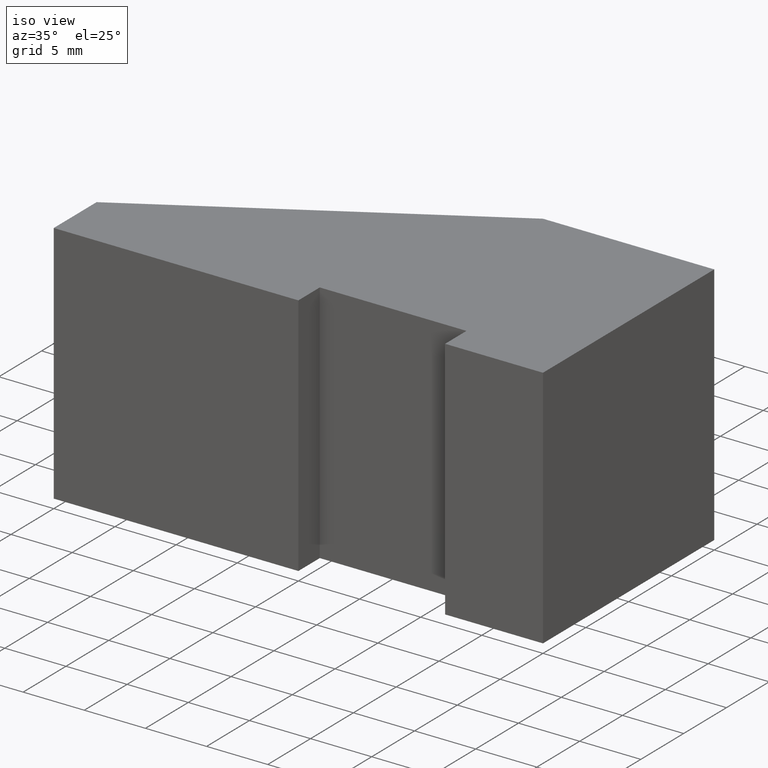
[diagram: clean part render]
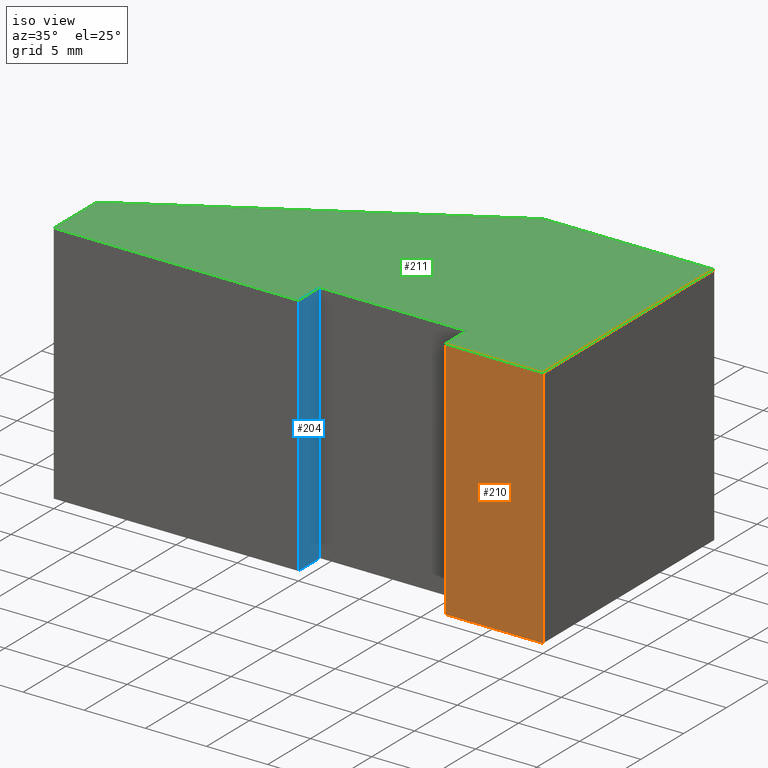
[diagram: same view with three faces highlighted in distinct colors, each labeled with its STEP entity id]
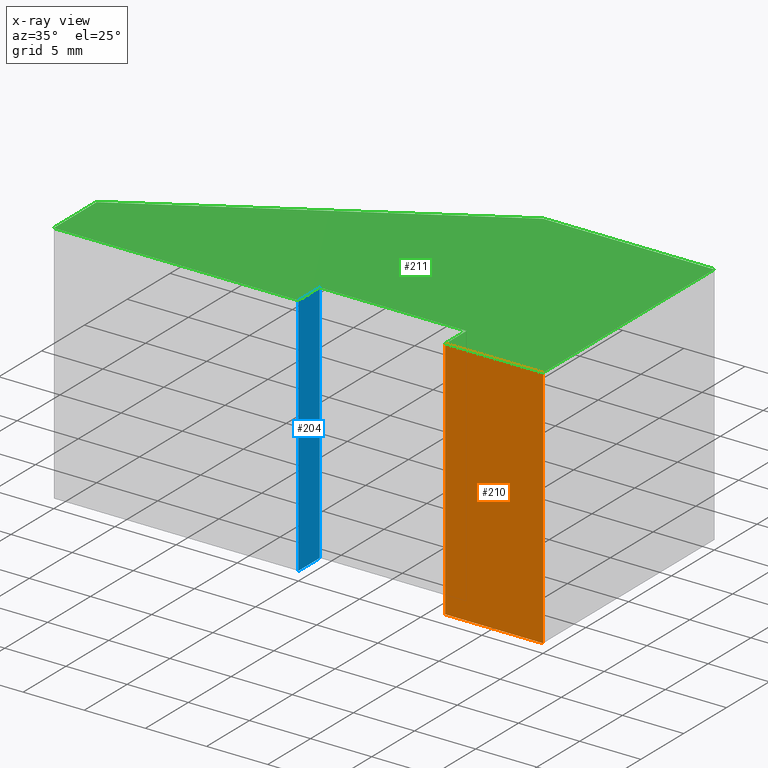
[diagram: x-ray of the same camera — body ghosted, the three highlighted faces saturated]
A machine part, iso view with three faces highlighted in distinct colors.
The next image is the same camera in x-ray (body ghosted, the three faces saturated) — at least one of them is partly hidden behind the body in this view.
Their STEP definitions:

[orange] entity #210 — the highlighted planar face has unit normal (0, -1, 0).
#24=FACE_OUTER_BOUND('',#35,.T.);
#35=EDGE_LOOP('',(#177,#178,#179,#180));
#38=LINE('',#303,#65);
#48=LINE('',#322,#75);
#62=LINE('',#350,#89);
#63=LINE('',#352,#90);
#65=VECTOR('',#251,10.);
#75=VECTOR('',#263,10.);
#89=VECTOR('',#291,10.);
#90=VECTOR('',#294,10.);
#91=VERTEX_POINT('',#299);
#93=VERTEX_POINT('',#302);
#100=VERTEX_POINT('',#318);
#108=VERTEX_POINT('',#348);
#110=EDGE_CURVE('',#93,#91,#38,.T.);
#120=EDGE_CURVE('',#100,#93,#48,.T.);
#134=EDGE_CURVE('',#91,#108,#62,.T.);
#135=EDGE_CURVE('',#108,#100,#63,.T.);
#177=ORIENTED_EDGE('',*,*,#135,.T.);
#178=ORIENTED_EDGE('',*,*,#120,.T.);
#179=ORIENTED_EDGE('',*,*,#110,.T.);
#180=ORIENTED_EDGE('',*,*,#134,.T.);
#199=PLANE('',#244);
#210=ADVANCED_FACE('',(#24),#199,.T.);
#244=AXIS2_PLACEMENT_3D('',#351,#292,#293);
#251=DIRECTION('',(1.,3.46944695195361E-17,0.));
#263=DIRECTION('',(0.,0.,-1.));
#291=DIRECTION('',(0.,0.,1.));
#292=DIRECTION('center_axis',(3.46944695195361E-17,-1.,0.));
#293=DIRECTION('ref_axis',(0.,0.,-1.));
#294=DIRECTION('',(-1.,-3.46944695195361E-17,0.));
#299=CARTESIAN_POINT('',(3.67394050203139E-15,0.,-10.));
#302=CARTESIAN_POINT('',(-8.,-2.77555756156289E-16,-10.));
#303=CARTESIAN_POINT('',(3.67394050203139E-15,0.,-10.));
#318=CARTESIAN_POINT('',(-8.,-2.77555756156289E-16,10.));
#322=CARTESIAN_POINT('',(-8.,-2.77555756156289E-16,0.));
#348=CARTESIAN_POINT('',(3.67394050203139E-15,0.,10.));
#350=CARTESIAN_POINT('',(3.67394050203139E-15,0.,0.));
#351=CARTESIAN_POINT('Origin',(3.67394050203139E-15,0.,0.));
#352=CARTESIAN_POINT('',(3.67394050203139E-15,0.,10.));

[blue] entity #204 — the highlighted planar face has unit normal (1, 0, 0).
#18=FACE_OUTER_BOUND('',#29,.T.);
#29=EDGE_LOOP('',(#153,#154,#155,#156));
#41=LINE('',#309,#68);
#50=LINE('',#326,#77);
#51=LINE('',#329,#78);
#52=LINE('',#330,#79);
#68=VECTOR('',#254,10.);
#77=VECTOR('',#267,10.);
#78=VECTOR('',#270,10.);
#79=VECTOR('',#271,10.);
#95=VERTEX_POINT('',#306);
#96=VERTEX_POINT('',#308);
#102=VERTEX_POINT('',#324);
#103=VERTEX_POINT('',#328);
#113=EDGE_CURVE('',#96,#95,#41,.T.);
#122=EDGE_CURVE('',#102,#95,#50,.T.);
#123=EDGE_CURVE('',#102,#103,#51,.T.);
#124=EDGE_CURVE('',#103,#96,#52,.T.);
#153=ORIENTED_EDGE('',*,*,#123,.T.);
#154=ORIENTED_EDGE('',*,*,#124,.T.);
#155=ORIENTED_EDGE('',*,*,#113,.T.);
#156=ORIENTED_EDGE('',*,*,#122,.F.);
#193=PLANE('',#238);
#204=ADVANCED_FACE('',(#18),#193,.T.);
#238=AXIS2_PLACEMENT_3D('',#327,#268,#269);
#254=DIRECTION('',(0.,1.,0.));
#267=DIRECTION('',(0.,0.,-1.));
#268=DIRECTION('center_axis',(1.,0.,0.));
#269=DIRECTION('ref_axis',(0.,0.,-1.));
#270=DIRECTION('',(0.,-1.,0.));
#271=DIRECTION('',(0.,0.,-1.));
#306=CARTESIAN_POINT('',(-20.,2.5,-10.));
#308=CARTESIAN_POINT('',(-20.,5.74670060565057E-15,-10.));
#309=CARTESIAN_POINT('',(-20.,2.5,-10.));
#324=CARTESIAN_POINT('',(-20.,2.5,10.));
#326=CARTESIAN_POINT('',(-20.,2.5,0.));
#327=CARTESIAN_POINT('Origin',(-20.,2.5,0.));
#328=CARTESIAN_POINT('',(-20.,5.74670060565057E-15,10.));
#329=CARTESIAN_POINT('',(-20.,2.5,10.));
#330=CARTESIAN_POINT('',(-20.,5.74670060565057E-15,0.));

[green] entity #211 — the highlighted planar face has unit normal (0, 0, 1).
#25=FACE_OUTER_BOUND('',#36,.T.);
#36=EDGE_LOOP('',(#181,#182,#183,#184,#185,#186,#187,#188,#189));
#46=LINE('',#320,#73);
#49=LINE('',#325,#76);
#51=LINE('',#329,#78);
#53=LINE('',#333,#80);
#55=LINE('',#337,#82);
#57=LINE('',#341,#84);
#59=LINE('',#345,#86);
#61=LINE('',#349,#88);
#63=LINE('',#352,#90);
#73=VECTOR('',#261,10.);
#76=VECTOR('',#266,10.);
#78=VECTOR('',#270,10.);
#80=VECTOR('',#274,10.);
#82=VECTOR('',#278,10.);
#84=VECTOR('',#282,10.);
#86=VECTOR('',#286,10.);
#88=VECTOR('',#290,10.);
#90=VECTOR('',#294,10.);
#100=VERTEX_POINT('',#318);
#101=VERTEX_POINT('',#319);
#102=VERTEX_POINT('',#324);
#103=VERTEX_POINT('',#328);
#104=VERTEX_POINT('',#332);
#105=VERTEX_POINT('',#336);
#106=VERTEX_POINT('',#340);
#107=VERTEX_POINT('',#344);
#108=VERTEX_POINT('',#348);
#118=EDGE_CURVE('',#100,#101,#46,.T.);
#121=EDGE_CURVE('',#101,#102,#49,.T.);
#123=EDGE_CURVE('',#102,#103,#51,.T.);
#125=EDGE_CURVE('',#103,#104,#53,.T.);
#127=EDGE_CURVE('',#104,#105,#55,.T.);
#129=EDGE_CURVE('',#105,#106,#57,.T.);
#131=EDGE_CURVE('',#106,#107,#59,.T.);
#133=EDGE_CURVE('',#107,#108,#61,.T.);
#135=EDGE_CURVE('',#108,#100,#63,.T.);
#181=ORIENTED_EDGE('',*,*,#118,.F.);
#182=ORIENTED_EDGE('',*,*,#135,.F.);
#183=ORIENTED_EDGE('',*,*,#133,.F.);
#184=ORIENTED_EDGE('',*,*,#131,.F.);
#185=ORIENTED_EDGE('',*,*,#129,.F.);
#186=ORIENTED_EDGE('',*,*,#127,.F.);
#187=ORIENTED_EDGE('',*,*,#125,.F.);
#188=ORIENTED_EDGE('',*,*,#123,.F.);
#189=ORIENTED_EDGE('',*,*,#121,.F.);
#200=PLANE('',#245);
#211=ADVANCED_FACE('',(#25),#200,.T.);
#245=AXIS2_PLACEMENT_3D('',#353,#295,#296);
#261=DIRECTION('',(0.,1.,0.));
#266=DIRECTION('',(-1.,-3.70074341541719E-16,0.));
#270=DIRECTION('',(0.,-1.,0.));
#274=DIRECTION('',(-1.,-3.67394039744206E-16,0.));
#278=DIRECTION('',(-8.88178419700125E-16,1.,0.));
#282=DIRECTION('',(0.866185586048601,0.499722453489577,0.));
#286=DIRECTION('',(1.,4.75809867696496E-16,0.));
#290=DIRECTION('',(3.085971153719E-16,-1.,0.));
#294=DIRECTION('',(-1.,-3.46944695195361E-17,0.));
#295=DIRECTION('center_axis',(0.,0.,1.));
#296=DIRECTION('ref_axis',(1.,0.,0.));
#318=CARTESIAN_POINT('',(-8.,-2.77555756156289E-16,10.));
#319=CARTESIAN_POINT('',(-8.,2.5,10.));
#320=CARTESIAN_POINT('',(-8.,-2.77555756156289E-16,10.));
#324=CARTESIAN_POINT('',(-20.,2.5,10.));
#325=CARTESIAN_POINT('',(-8.,2.5,10.));
#328=CARTESIAN_POINT('',(-20.,5.74670060565057E-15,10.));
#329=CARTESIAN_POINT('',(-20.,2.5,10.));
#332=CARTESIAN_POINT('',(-40.,-1.60118018923355E-15,10.));
#333=CARTESIAN_POINT('',(-20.,5.74670060565057E-15,10.));
#336=CARTESIAN_POINT('',(-40.,5.,10.));
#337=CARTESIAN_POINT('',(-40.,-1.60118018923355E-15,10.));
#340=CARTESIAN_POINT('',(-14.,20.,10.));
#341=CARTESIAN_POINT('',(-40.,5.,10.));
#344=CARTESIAN_POINT('',(-2.4980018054066E-15,20.,10.));
#345=CARTESIAN_POINT('',(-14.,20.,10.));
#348=CARTESIAN_POINT('',(3.67394050203139E-15,0.,10.));
#349=CARTESIAN_POINT('',(-2.4980018054066E-15,20.,10.));
#352=CARTESIAN_POINT('',(3.67394050203139E-15,0.,10.));
#353=CARTESIAN_POINT('Origin',(-17.3522872857137,7.92829977061662,10.));